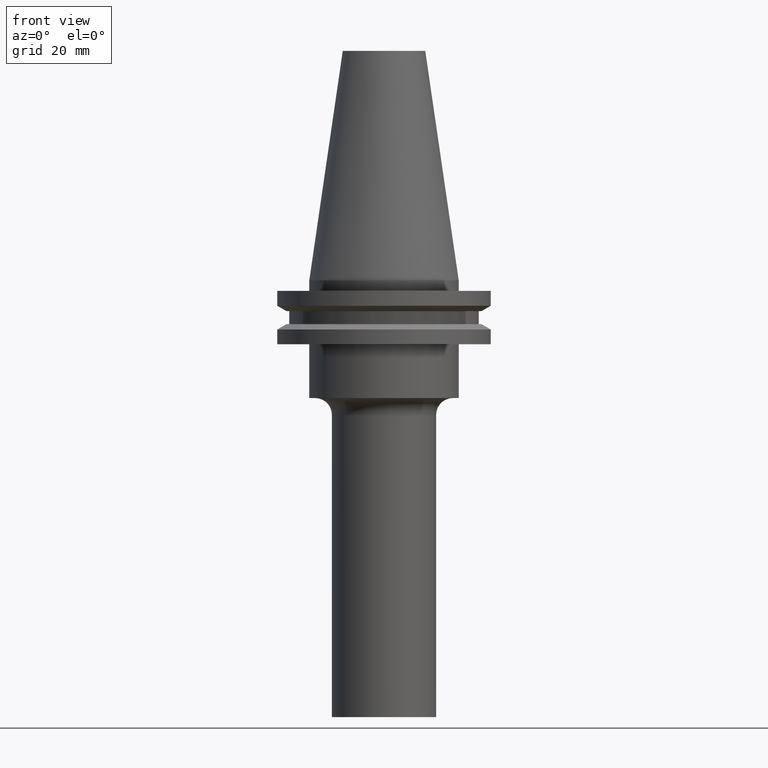
[diagram: clean part render]
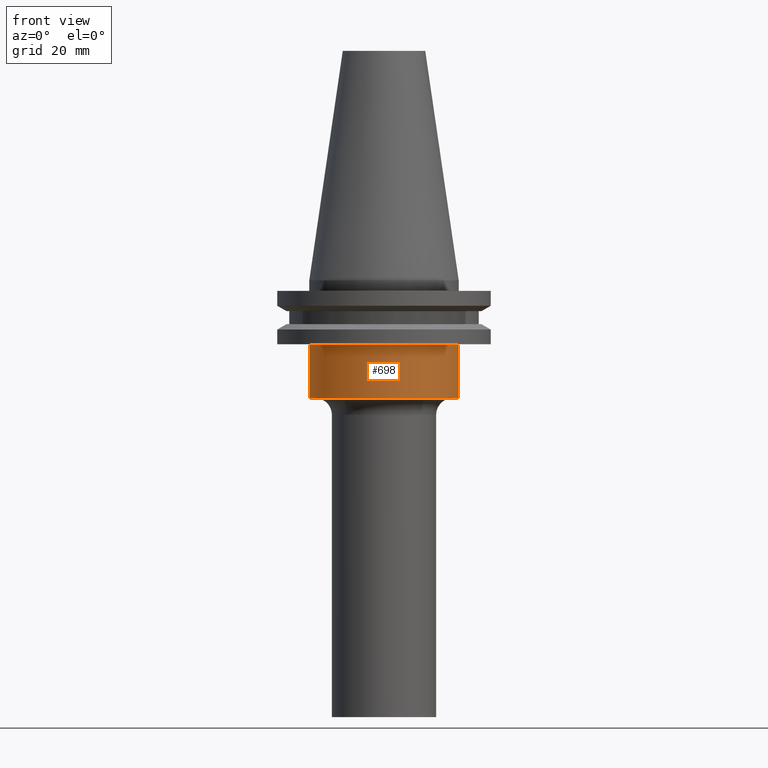
[diagram: same view with one face highlighted and labeled with its STEP entity id]
A machine part, front view. The second image highlights one B-rep face of the part: STEP entity #698.
In plain terms, the highlighted cylindrical surface (partial cylindrical patch) has radius 22.225 mm, axis along (-0, -0, 1).
Its self-contained STEP definition (entity closure, byte-faithful):
#7 = EDGE_CURVE ( 'NONE', #359, #460, #430, .T. ) ;
#16 = DIRECTION ( 'NONE',  ( 1.000000000000000000, 0.000000000000000000, 0.000000000000000000 ) ) ;
#24 = DIRECTION ( 'NONE',  ( -0.000000000000000000, -0.000000000000000000, 1.000000000000000000 ) ) ;
#30 = FACE_OUTER_BOUND ( 'NONE', #273, .T. ) ;
#56 = ORIENTED_EDGE ( 'NONE', *, *, #295, .T. ) ;
#57 = EDGE_CURVE ( 'NONE', #583, #170, #164, .T. ) ;
#108 = AXIS2_PLACEMENT_3D ( 'NONE', #275, #332, #220 ) ;
#118 = VECTOR ( 'NONE', #24, 1000.000000000000000 ) ;
#125 = VECTOR ( 'NONE', #617, 1000.000000000000000 ) ;
#161 = CARTESIAN_POINT ( 'NONE',  ( -22.22500000000000142, 2.721777511104992849E-15, -19.04999999999999716 ) ) ;
#162 = ORIENTED_EDGE ( 'NONE', *, *, #7, .T. ) ;
#164 = CIRCLE ( 'NONE', #344, 22.22500000000000142 ) ;
#170 = VERTEX_POINT ( 'NONE', #206 ) ;
#176 = AXIS2_PLACEMENT_3D ( 'NONE', #333, #250, #16 ) ;
#206 = CARTESIAN_POINT ( 'NONE',  ( 22.22500000000000142, 0.000000000000000000, -19.04999999999999716 ) ) ;
#220 = DIRECTION ( 'NONE',  ( 1.000000000000000000, 0.000000000000000000, 0.000000000000000000 ) ) ;
#250 = DIRECTION ( 'NONE',  ( -0.000000000000000000, -0.000000000000000000, 1.000000000000000000 ) ) ;
#273 = EDGE_LOOP ( 'NONE', ( #569, #162, #56, #456 ) ) ;
#275 = CARTESIAN_POINT ( 'NONE',  ( 0.000000000000000000, 0.000000000000000000, 68.25000000000000000 ) ) ;
#295 = EDGE_CURVE ( 'NONE', #460, #170, #610, .T. ) ;
#332 = DIRECTION ( 'NONE',  ( -0.000000000000000000, -0.000000000000000000, 1.000000000000000000 ) ) ;
#333 = CARTESIAN_POINT ( 'NONE',  ( 0.000000000000000000, 0.000000000000000000, -35.04999999999999716 ) ) ;
#344 = AXIS2_PLACEMENT_3D ( 'NONE', #618, #426, #680 ) ;
#359 = VERTEX_POINT ( 'NONE', #365 ) ;
#360 = CARTESIAN_POINT ( 'NONE',  ( 22.22500000000000142, 0.000000000000000000, -35.04999999999999716 ) ) ;
#365 = CARTESIAN_POINT ( 'NONE',  ( -22.22500000000000142, 2.721777511104992849E-15, -35.04999999999999716 ) ) ;
#380 = CYLINDRICAL_SURFACE ( 'NONE', #108, 22.22500000000000142 ) ;
#426 = DIRECTION ( 'NONE',  ( -0.000000000000000000, -0.000000000000000000, 1.000000000000000000 ) ) ;
#430 = CIRCLE ( 'NONE', #176, 22.22500000000000142 ) ;
#456 = ORIENTED_EDGE ( 'NONE', *, *, #57, .F. ) ;
#460 = VERTEX_POINT ( 'NONE', #360 ) ;
#498 = LINE ( 'NONE', #673, #125 ) ;
#560 = CARTESIAN_POINT ( 'NONE',  ( 22.22500000000000142, 0.000000000000000000, 68.25000000000000000 ) ) ;
#569 = ORIENTED_EDGE ( 'NONE', *, *, #648, .F. ) ;
#583 = VERTEX_POINT ( 'NONE', #161 ) ;
#610 = LINE ( 'NONE', #560, #118 ) ;
#617 = DIRECTION ( 'NONE',  ( -0.000000000000000000, -0.000000000000000000, 1.000000000000000000 ) ) ;
#618 = CARTESIAN_POINT ( 'NONE',  ( 0.000000000000000000, 0.000000000000000000, -19.04999999999999716 ) ) ;
#648 = EDGE_CURVE ( 'NONE', #359, #583, #498, .T. ) ;
#673 = CARTESIAN_POINT ( 'NONE',  ( -22.22500000000000142, 2.721777511104992849E-15, 68.25000000000000000 ) ) ;
#680 = DIRECTION ( 'NONE',  ( 1.000000000000000000, 0.000000000000000000, 0.000000000000000000 ) ) ;
#698 = ADVANCED_FACE ( 'NONE', ( #30 ), #380, .T. ) ;